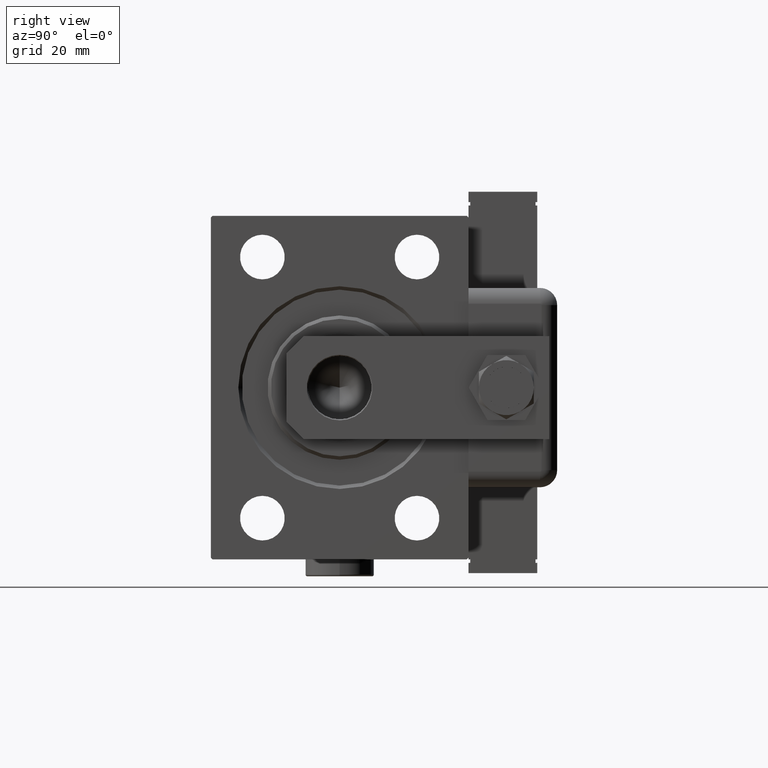
[diagram: clean part render]
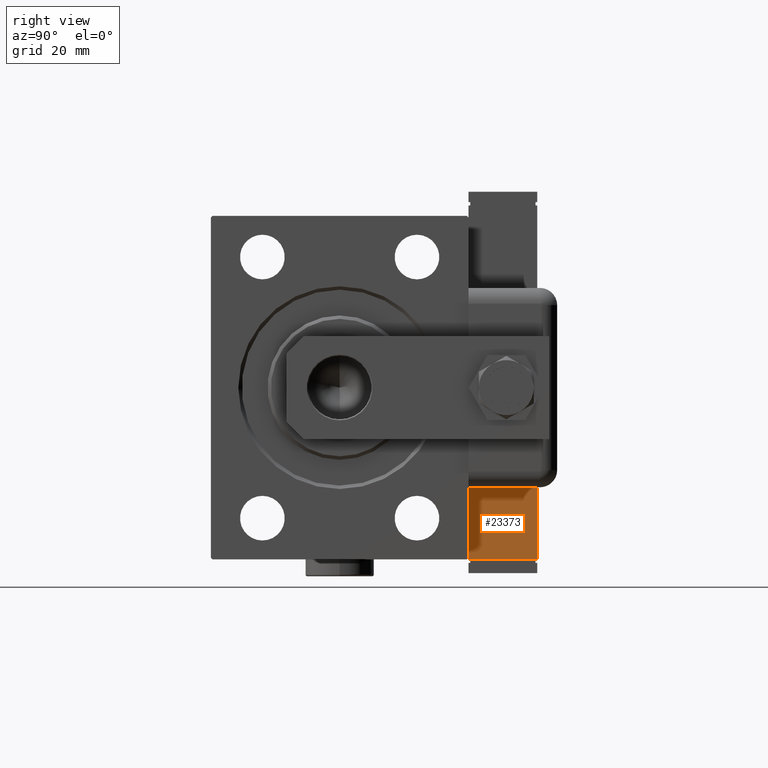
[diagram: same view with one face highlighted and labeled with its STEP entity id]
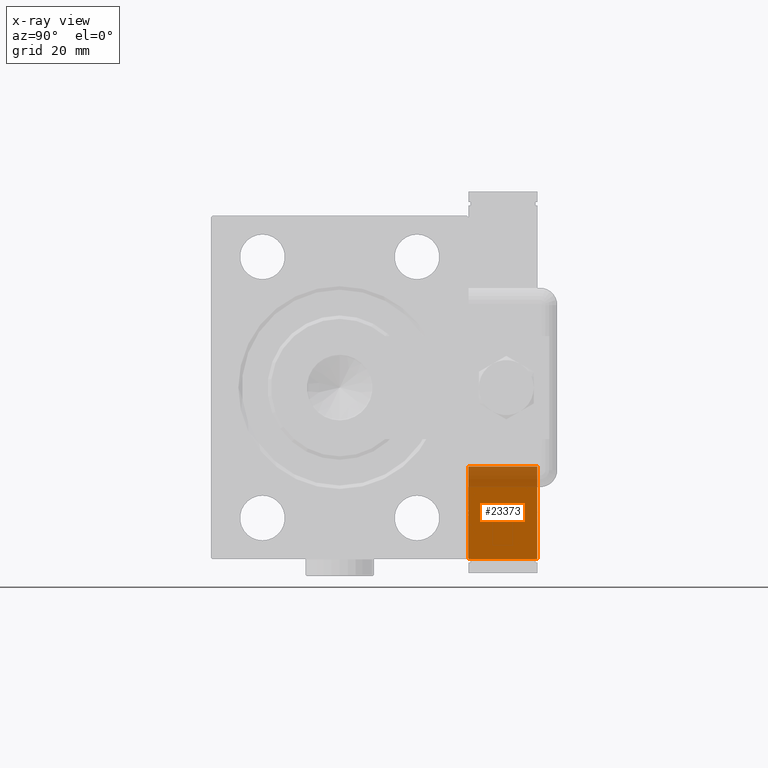
[diagram: x-ray of the same camera — body ghosted, the highlighted face saturated]
A machine part, right view. The second image highlights one B-rep face of the part: STEP entity #23373.
The next image is the same camera in x-ray: the body ghosted, the highlighted face saturated — about 22% of this face is hidden behind the body in this view.
In plain terms, the highlighted planar face has unit normal (-1, -0, 0).
Its self-contained STEP definition (entity closure, byte-faithful):
#189 = CARTESIAN_POINT ( 'NONE',  ( 20.00000000000005329, -13.49999999999996092, 10.00000000000000000 ) ) ;
#2084 = CARTESIAN_POINT ( 'NONE',  ( 20.00000000000005329, -13.49999999999996092, -10.00000000000000000 ) ) ;
#4863 = FACE_OUTER_BOUND ( 'NONE', #56988, .T. ) ;
#7779 = LINE ( 'NONE', #46464, #10735 ) ;
#8893 = EDGE_CURVE ( 'NONE', #46978, #48138, #28563, .T. ) ;
#9450 = VECTOR ( 'NONE', #51272, 1000.000000000000000 ) ;
#10735 = VECTOR ( 'NONE', #17763, 1000.000000000000000 ) ;
#17030 = ORIENTED_EDGE ( 'NONE', *, *, #27440, .T. ) ;
#17090 = VECTOR ( 'NONE', #40591, 1000.000000000000000 ) ;
#17763 = DIRECTION ( 'NONE',  ( 1.284980352575412699E-16, 1.000000000000000000, 0.000000000000000000 ) ) ;
#18483 = CARTESIAN_POINT ( 'NONE',  ( 20.00000000000005329, -13.49999999999996092, 10.00000000000000000 ) ) ;
#21882 = LINE ( 'NONE', #23333, #17090 ) ;
#23114 = CARTESIAN_POINT ( 'NONE',  ( 20.00000000000005684, 13.50000000000003730, 10.00000000000000000 ) ) ;
#23333 = CARTESIAN_POINT ( 'NONE',  ( 20.00000000000005329, -13.49999999999996092, -10.00000000000000000 ) ) ;
#23373 = ADVANCED_FACE ( 'NONE', ( #4863 ), #28887, .F. ) ;
#27440 = EDGE_CURVE ( 'NONE', #52368, #41770, #27848, .T. ) ;
#27848 = LINE ( 'NONE', #18483, #9450 ) ;
#28563 = LINE ( 'NONE', #38212, #54578 ) ;
#28887 = PLANE ( 'NONE',  #36207 ) ;
#29242 = ORIENTED_EDGE ( 'NONE', *, *, #38574, .F. ) ;
#36207 = AXIS2_PLACEMENT_3D ( 'NONE', #189, #42003, #57633 ) ;
#38212 = CARTESIAN_POINT ( 'NONE',  ( 20.00000000000005684, 13.50000000000003730, 10.00000000000000000 ) ) ;
#38574 = EDGE_CURVE ( 'NONE', #52368, #46978, #7779, .T. ) ;
#40591 = DIRECTION ( 'NONE',  ( 1.284980352575412699E-16, 1.000000000000000000, 0.000000000000000000 ) ) ;
#41156 = CARTESIAN_POINT ( 'NONE',  ( 20.00000000000005684, 13.50000000000003730, -10.00000000000000000 ) ) ;
#41364 = CARTESIAN_POINT ( 'NONE',  ( 20.00000000000005329, -13.49999999999996092, 10.00000000000000000 ) ) ;
#41770 = VERTEX_POINT ( 'NONE', #2084 ) ;
#42003 = DIRECTION ( 'NONE',  ( -1.000000000000000000, 1.284980352575412699E-16, 0.000000000000000000 ) ) ;
#44114 = ORIENTED_EDGE ( 'NONE', *, *, #8893, .F. ) ;
#46464 = CARTESIAN_POINT ( 'NONE',  ( 20.00000000000005329, -13.49999999999996092, 10.00000000000000000 ) ) ;
#46978 = VERTEX_POINT ( 'NONE', #23114 ) ;
#47598 = DIRECTION ( 'NONE',  ( -0.000000000000000000, -0.000000000000000000, -1.000000000000000000 ) ) ;
#48138 = VERTEX_POINT ( 'NONE', #41156 ) ;
#48771 = ORIENTED_EDGE ( 'NONE', *, *, #57209, .T. ) ;
#51272 = DIRECTION ( 'NONE',  ( -0.000000000000000000, -0.000000000000000000, -1.000000000000000000 ) ) ;
#52368 = VERTEX_POINT ( 'NONE', #41364 ) ;
#54578 = VECTOR ( 'NONE', #47598, 1000.000000000000000 ) ;
#56988 = EDGE_LOOP ( 'NONE', ( #48771, #44114, #29242, #17030 ) ) ;
#57209 = EDGE_CURVE ( 'NONE', #41770, #48138, #21882, .T. ) ;
#57633 = DIRECTION ( 'NONE',  ( -1.284980352575412699E-16, -1.000000000000000000, 0.000000000000000000 ) ) ;